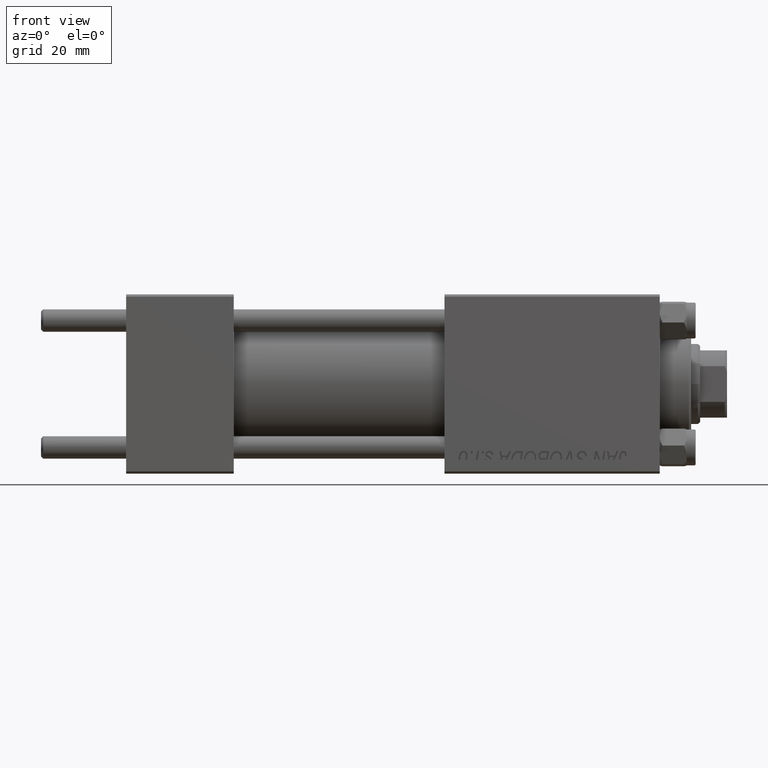
[diagram: clean part render]
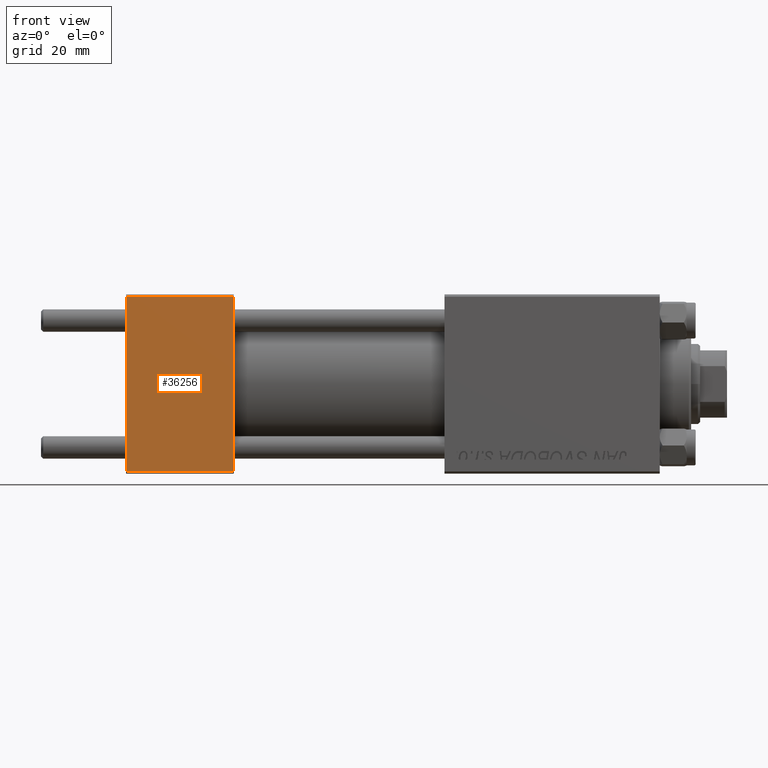
[diagram: same view with one face highlighted and labeled with its STEP entity id]
A machine part, front view. The second image highlights one B-rep face of the part: STEP entity #36256.
In plain terms, the highlighted planar face has unit normal (0, 1, 0).
Its self-contained STEP definition (entity closure, byte-faithful):
#605 = LINE ( 'NONE', #20294, #14361 ) ;
#1031 = VECTOR ( 'NONE', #21997, 1000.000000000000000 ) ;
#1538 = LINE ( 'NONE', #43952, #33889 ) ;
#1793 = DIRECTION ( 'NONE',  ( -1.000000000000000000, 0.000000000000000000, 0.000000000000000000 ) ) ;
#3774 = CARTESIAN_POINT ( 'NONE',  ( 24.00000000000000000, -20.00000000000000355, 19.99999999999998934 ) ) ;
#6493 = AXIS2_PLACEMENT_3D ( 'NONE', #7450, #22852, #37989 ) ;
#7450 = CARTESIAN_POINT ( 'NONE',  ( 24.00000000000000000, -20.00000000000000355, 19.99999999999998934 ) ) ;
#7520 = ORIENTED_EDGE ( 'NONE', *, *, #8468, .T. ) ;
#8468 = EDGE_CURVE ( 'NONE', #32177, #11704, #605, .T. ) ;
#8910 = VERTEX_POINT ( 'NONE', #17676 ) ;
#11704 = VERTEX_POINT ( 'NONE', #47187 ) ;
#12492 = ORIENTED_EDGE ( 'NONE', *, *, #21782, .F. ) ;
#14361 = VECTOR ( 'NONE', #46782, 1000.000000000000000 ) ;
#14388 = DIRECTION ( 'NONE',  ( 0.000000000000000000, 8.673617379884036705E-17, -1.000000000000000000 ) ) ;
#17453 = VECTOR ( 'NONE', #14388, 1000.000000000000000 ) ;
#17676 = CARTESIAN_POINT ( 'NONE',  ( 24.00000000000000000, -20.00000000000000355, 19.49999999999998224 ) ) ;
#20294 = CARTESIAN_POINT ( 'NONE',  ( 24.00000000000000000, -20.00000000000000000, -19.49999999999999645 ) ) ;
#20675 = CARTESIAN_POINT ( 'NONE',  ( 0.000000000000000000, -20.00000000000000355, 19.49999999999998224 ) ) ;
#21782 = EDGE_CURVE ( 'NONE', #8910, #11704, #41656, .T. ) ;
#21997 = DIRECTION ( 'NONE',  ( 0.000000000000000000, 8.673617379884036705E-17, -1.000000000000000000 ) ) ;
#22852 = DIRECTION ( 'NONE',  ( -0.000000000000000000, 1.000000000000000000, 8.673617379884036705E-17 ) ) ;
#26785 = VERTEX_POINT ( 'NONE', #20675 ) ;
#30170 = PLANE ( 'NONE',  #6493 ) ;
#31999 = EDGE_CURVE ( 'NONE', #8910, #26785, #1538, .T. ) ;
#32177 = VERTEX_POINT ( 'NONE', #43605 ) ;
#32470 = ORIENTED_EDGE ( 'NONE', *, *, #31999, .T. ) ;
#33592 = CARTESIAN_POINT ( 'NONE',  ( 0.000000000000000000, -20.00000000000000355, 19.99999999999998934 ) ) ;
#33889 = VECTOR ( 'NONE', #1793, 1000.000000000000000 ) ;
#34201 = FACE_OUTER_BOUND ( 'NONE', #49489, .T. ) ;
#36256 = ADVANCED_FACE ( 'NONE', ( #34201 ), #30170, .F. ) ;
#37989 = DIRECTION ( 'NONE',  ( 0.000000000000000000, -8.673617379884036705E-17, 1.000000000000000000 ) ) ;
#41247 = EDGE_CURVE ( 'NONE', #26785, #32177, #45954, .T. ) ;
#41656 = LINE ( 'NONE', #3774, #17453 ) ;
#43605 = CARTESIAN_POINT ( 'NONE',  ( 0.000000000000000000, -20.00000000000000000, -19.49999999999999645 ) ) ;
#43952 = CARTESIAN_POINT ( 'NONE',  ( 24.00000000000000000, -20.00000000000000355, 19.49999999999998224 ) ) ;
#45623 = ORIENTED_EDGE ( 'NONE', *, *, #41247, .T. ) ;
#45954 = LINE ( 'NONE', #33592, #1031 ) ;
#46782 = DIRECTION ( 'NONE',  ( 1.000000000000000000, 0.000000000000000000, 0.000000000000000000 ) ) ;
#47187 = CARTESIAN_POINT ( 'NONE',  ( 24.00000000000000000, -20.00000000000000000, -19.49999999999999645 ) ) ;
#49489 = EDGE_LOOP ( 'NONE', ( #45623, #7520, #12492, #32470 ) ) ;